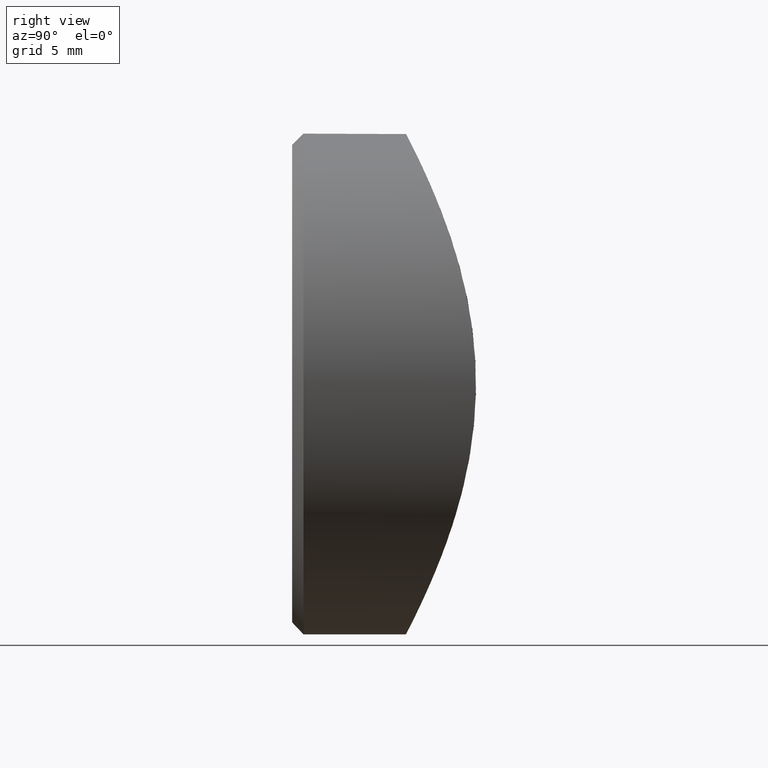
[diagram: clean part render]
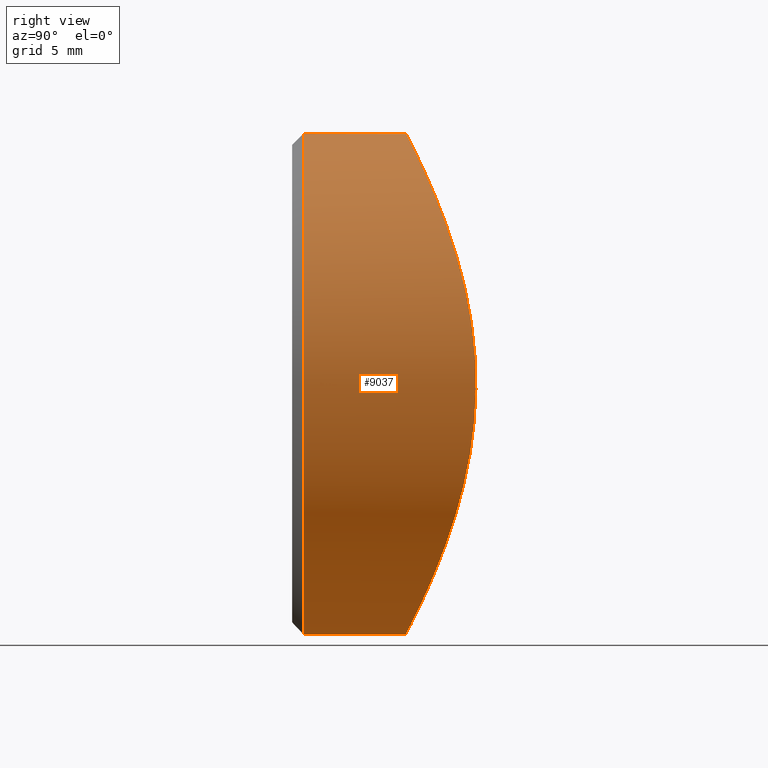
[diagram: same view with one face highlighted and labeled with its STEP entity id]
A machine part, right view. The second image highlights one B-rep face of the part: STEP entity #9037.
In plain terms, the highlighted cylindrical surface (bore or boss wall) has radius 11 mm, axis along (-0, -1, -0).
Its self-contained STEP definition (entity closure, byte-faithful):
#244 = CARTESIAN_POINT ( 'NONE',  ( 10.70620333068208119, 7.901795306539453279, -2.551291724373591752 ) ) ;
#329 = CARTESIAN_POINT ( 'NONE',  ( 3.927775296252041581, 5.364277933268157383, -10.28115287264342825 ) ) ;
#411 = CARTESIAN_POINT ( 'NONE',  ( 6.439472292355020500, 5.999280053823913050, -8.925292515866772192 ) ) ;
#451 = CARTESIAN_POINT ( 'NONE',  ( -10.84942384772801205, 7.986341322155988465, 1.850712909451587951 ) ) ;
#493 = CARTESIAN_POINT ( 'NONE',  ( -4.906659197807594630, 5.564238912340652377, 9.871899306962941267 ) ) ;
#527 = CARTESIAN_POINT ( 'NONE',  ( 8.046373666709609296, 6.584517496706517647, 7.508647219459643196 ) ) ;
#542 = CYLINDRICAL_SURFACE ( 'NONE', #10311, 11.00000000000000000 ) ;
#574 = CARTESIAN_POINT ( 'NONE',  ( 4.942988210309541941, 5.573332406475749679, 9.852844762403295320 ) ) ;
#613 = CARTESIAN_POINT ( 'NONE',  ( 0.7661881482282912881, 5.001238617810880527, 10.99761283690917146 ) ) ;
#693 = FACE_OUTER_BOUND ( 'NONE', #6405, .T. ) ;
#733 = CARTESIAN_POINT ( 'NONE',  ( -8.944118814454265376, 6.977865798376565287, -6.413131222837708201 ) ) ;
#1193 = CARTESIAN_POINT ( 'NONE',  ( 9.525308709443146782, 7.255308598689055977, -5.547356482762179297 ) ) ;
#1241 = EDGE_LOOP ( 'NONE', ( #7239 ) ) ;
#1268 = CARTESIAN_POINT ( 'NONE',  ( 4.923219424198027383, 5.568450330113947189, -9.863062565716964158 ) ) ;
#1354 = CARTESIAN_POINT ( 'NONE',  ( 8.267441144527145624, 6.676947024252424256, -7.264604639880495540 ) ) ;
#1403 = CARTESIAN_POINT ( 'NONE',  ( -10.90517051537184656, 8.019814301164606363, 1.486797017513220576 ) ) ;
#1447 = CARTESIAN_POINT ( 'NONE',  ( -10.91283529454353562, 8.024418805323666248, -1.430130143669122500 ) ) ;
#1491 = CARTESIAN_POINT ( 'NONE',  ( -9.316623533679065261, 7.155602735120614177, 5.858919985396516594 ) ) ;
#1531 = CARTESIAN_POINT ( 'NONE',  ( 7.301562166325803460, 6.289893972743327843, 8.257290047815160960 ) ) ;
#1653 = CARTESIAN_POINT ( 'NONE',  ( -10.43203426849924575, 7.741589596595918721, -3.563010612061605631 ) ) ;
#1681 = B_SPLINE_CURVE_WITH_KNOTS ( 'NONE', 3,
 ( #6158, #10848, #10930, #5108, #11801, #5190, #329, #1268, #11893, #411, #9932, #10808, #2263, #4182, #1354, #2342, #9070, #1193, #10020, #4268, #5230, #11935, #244, #7945, #3382, #11052, #4424, #3344, #10151, #2507, #8291, #11015, #9113, #4385, #10064, #5355, #6336, #8136, #527, #1531, #2424, #11136, #574, #11094, #3422, #3509, #9274, #6293, #613, #2384, #9237, #7311, #4305, #3466, #5439, #493, #7273, #8251, #6201, #2542, #10193, #1491, #7183, #7226, #4466, #5396, #6378, #451, #1403, #8175, #5272, #11978, #6246, #1447, #9156, #5314, #1653, #4593, #5523, #12135, #3667, #733, #6455, #11346, #11302, #8366, #3543, #4682, #12299, #7566, #7475, #7522, #10271, #9482, #3712, #10433, #8451, #1695 ),
 .UNSPECIFIED., .T., .F.,
 ( 4, 2, 2, 2, 2, 2, 2, 2, 2, 2, 2, 2, 2, 2, 2, 2, 2, 2, 2, 2, 2, 2, 2, 2, 2, 2, 2, 2, 2, 2, 2, 2, 2, 2, 2, 2, 2, 2, 2, 2, 2, 2, 2, 2, 2, 2, 2, 2, 4 ),
 ( 0.000000000000000000, 0.002188003082304654841, 0.003282004623456982045, 0.004376006164609308816, 0.006564009246913963223, 0.007658010788066288259, 0.008752012329218615896, 0.009846013870370942667, 0.01094001541152327117, 0.01312801849382792124, 0.01422202003498024628, 0.01531602157613257305, 0.01750402465843722832, 0.01859802619958955336, 0.01969202774074188186, 0.02078602928189421037, 0.02188003082304653887, 0.02406803390535119241, 0.02516203544650352092, 0.02625603698765584942, 0.02844404006996050296, 0.03063204315226515997, 0.03172604469341748501, 0.03282004623456981351, 0.03500804931687447052, 0.03610205085802679903, 0.03719605239917912753, 0.03938405548148377761, 0.04157205856378843462, 0.04376006164609309163, 0.04594806472839774864, 0.04704206626955007020, 0.04813606781070239871, 0.05032407089300706265, 0.05141807243415939116, 0.05251207397531171273, 0.05360607551646404123, 0.05470007705761636974, 0.05688808013992101981, 0.05798208168107334831, 0.05907608322222567682, 0.06017008476337800532, 0.06126408630453033383, 0.06345208938683499778, 0.06454609092798732628, 0.06564009246913965478, 0.06782809555144431179, 0.06892209709259664030, 0.07001609863374896880 ),
 .UNSPECIFIED. ) ;
#1695 = CARTESIAN_POINT ( 'NONE',  ( 1.626303258728256651E-16, 5.000000000000002665, -11.00000000000000178 ) ) ;
#1720 = CARTESIAN_POINT ( 'NONE',  ( 0.000000000000000000, 5.000000000000000888, -11.00000000000000000 ) ) ;
#2121 = VERTEX_POINT ( 'NONE', #2736 ) ;
#2263 = CARTESIAN_POINT ( 'NONE',  ( 7.533381166891571112, 6.381835589875548109, -8.023214781158337416 ) ) ;
#2342 = CARTESIAN_POINT ( 'NONE',  ( 8.716991664604597290, 6.873483581067159953, -6.718565320900548699 ) ) ;
#2384 = CARTESIAN_POINT ( 'NONE',  ( -0.3304821063437383133, 4.999424213438067532, 11.00110970196394433 ) ) ;
#2424 = CARTESIAN_POINT ( 'NONE',  ( 6.758495176017437878, 6.096552498446191848, 8.708483410855748730 ) ) ;
#2507 = CARTESIAN_POINT ( 'NONE',  ( 10.71514647470200643, 7.907037431630823399, 2.513462174968426499 ) ) ;
#2542 = CARTESIAN_POINT ( 'NONE',  ( -8.271575633887181311, 6.672854846020938702, 7.285564790806043689 ) ) ;
#2718 = DIRECTION ( 'NONE',  ( 0.000000000000000000, 0.000000000000000000, -1.000000000000000000 ) ) ;
#2721 = EDGE_CURVE ( 'NONE', #2121, #2121, #4227, .T. ) ;
#2736 = CARTESIAN_POINT ( 'NONE',  ( 0.000000000000000000, 0.4999999999999952260, 11.00000000000000000 ) ) ;
#3344 = CARTESIAN_POINT ( 'NONE',  ( 10.91148235597395910, 8.023605628825722036, 1.440419524102471094 ) ) ;
#3382 = CARTESIAN_POINT ( 'NONE',  ( 10.99800208367776477, 8.075873664732334589, -0.7619070900029055737 ) ) ;
#3422 = CARTESIAN_POINT ( 'NONE',  ( 3.617143603080511749, 5.307918549273324516, 10.39460299725860359 ) ) ;
#3466 = CARTESIAN_POINT ( 'NONE',  ( -2.869170902224891684, 5.182776678979848839, 10.64418697513752576 ) ) ;
#3509 = CARTESIAN_POINT ( 'NONE',  ( 2.924692728780287077, 5.199786486053920243, 10.61026256782288257 ) ) ;
#3543 = CARTESIAN_POINT ( 'NONE',  ( -6.749965422141849025, 6.093853175831468683, -8.714572992334876034 ) ) ;
#3667 = CARTESIAN_POINT ( 'NONE',  ( -9.338251989776047424, 7.166220700876566596, -5.824307960938729600 ) ) ;
#3712 = CARTESIAN_POINT ( 'NONE',  ( -1.475810461039820831, 5.048227752373741772, -10.90680908830020357 ) ) ;
#3720 = DIRECTION ( 'NONE',  ( -0.000000000000000000, -1.000000000000000000, -0.000000000000000000 ) ) ;
#3787 = DIRECTION ( 'NONE',  ( -0.000000000000000000, 1.000000000000000000, -0.000000000000000000 ) ) ;
#4182 = CARTESIAN_POINT ( 'NONE',  ( 8.030741142240314545, 6.578107402731796505, -7.525357395938277350 ) ) ;
#4227 = CIRCLE ( 'NONE', #4417, 11.00000000000000000 ) ;
#4268 = CARTESIAN_POINT ( 'NONE',  ( 10.27677230834422595, 7.656732314538135853, -3.938929137060056096 ) ) ;
#4305 = CARTESIAN_POINT ( 'NONE',  ( -1.797442739525138888, 5.073283405931716672, 10.85826478333871492 ) ) ;
#4385 = CARTESIAN_POINT ( 'NONE',  ( 9.875124846991392147, 7.437756601865980421, 4.899124854131734708 ) ) ;
#4417 = AXIS2_PLACEMENT_3D ( 'NONE', #7674, #3787, #6620 ) ;
#4424 = CARTESIAN_POINT ( 'NONE',  ( 10.98332523577125208, 8.066927278961861347, 0.7083942231674656975 ) ) ;
#4466 = CARTESIAN_POINT ( 'NONE',  ( -9.997199513765075096, 7.504522913268830919, 4.602503198581874955 ) ) ;
#4593 = CARTESIAN_POINT ( 'NONE',  ( -10.01511374817991396, 7.514107995310277843, -4.563780506468198439 ) ) ;
#4682 = CARTESIAN_POINT ( 'NONE',  ( -5.866171023575696530, 5.825436670913803461, -9.312061610184477090 ) ) ;
#4750 = FACE_OUTER_BOUND ( 'NONE', #1241, .T. ) ;
#5108 = CARTESIAN_POINT ( 'NONE',  ( 2.534682675223399517, 5.149026273689956135, -10.71015019809598101 ) ) ;
#5190 = CARTESIAN_POINT ( 'NONE',  ( 3.585325968123272755, 5.302388205038666591, -10.40571078054324161 ) ) ;
#5230 = CARTESIAN_POINT ( 'NONE',  ( 10.40012597654171067, 7.725890778498209599, -3.601324458944998863 ) ) ;
#5272 = CARTESIAN_POINT ( 'NONE',  ( -10.99889762403681459, 8.076417225544075151, 0.3964770693584104833 ) ) ;
#5314 = CARTESIAN_POINT ( 'NONE',  ( -10.64351090047416193, 7.864696781815916360, -2.872213773439324491 ) ) ;
#5355 = CARTESIAN_POINT ( 'NONE',  ( 8.945724061720213172, 6.978607076919857377, 6.410945904303895659 ) ) ;
#5396 = CARTESIAN_POINT ( 'NONE',  ( -10.41266210851994423, 7.730676398745607969, 3.617264582210855117 ) ) ;
#5439 = CARTESIAN_POINT ( 'NONE',  ( -3.563249721100179457, 5.290356493343431055, 10.43230328524458095 ) ) ;
#5523 = CARTESIAN_POINT ( 'NONE',  ( -9.859481239499171323, 7.431229301258803766, -4.890628027837803593 ) ) ;
#6158 = CARTESIAN_POINT ( 'NONE',  ( 1.626303258728256651E-16, 5.000000000000002665, -11.00000000000000178 ) ) ;
#6201 = CARTESIAN_POINT ( 'NONE',  ( -7.272363231969766417, 6.279129176816129920, 8.283184822907376343 ) ) ;
#6246 = CARTESIAN_POINT ( 'NONE',  ( -10.98398630777729501, 8.067328638044862998, -0.6980624500910832531 ) ) ;
#6293 = CARTESIAN_POINT ( 'NONE',  ( 1.490624953899859717, 5.040158390333101757, 10.92313522355307853 ) ) ;
#6336 = CARTESIAN_POINT ( 'NONE',  ( 8.732449053060632238, 6.880461853132674221, 6.698512477491932238 ) ) ;
#6378 = CARTESIAN_POINT ( 'NONE',  ( -10.62777386024006887, 7.855522252781230286, 2.931035171921014371 ) ) ;
#6405 = EDGE_LOOP ( 'NONE', ( #9009 ) ) ;
#6455 = CARTESIAN_POINT ( 'NONE',  ( -8.733124148556850486, 6.880760165170922704, -6.697674060011289399 ) ) ;
#6620 = DIRECTION ( 'NONE',  ( 0.000000000000000000, 0.000000000000000000, 1.000000000000000000 ) ) ;
#7183 = CARTESIAN_POINT ( 'NONE',  ( -9.503311465944445757, 7.248389956309825521, 5.551071626061271580 ) ) ;
#7226 = CARTESIAN_POINT ( 'NONE',  ( -9.843093480281877916, 7.422620981476626412, 4.923498324854598707 ) ) ;
#7239 = ORIENTED_EDGE ( 'NONE', *, *, #2721, .T. ) ;
#7273 = CARTESIAN_POINT ( 'NONE',  ( -5.535620454030974358, 5.726176660261271145, 9.532181099180055739 ) ) ;
#7311 = CARTESIAN_POINT ( 'NONE',  ( -1.434858456084544764, 5.045399829630942357, 10.91228900024890969 ) ) ;
#7475 = CARTESIAN_POINT ( 'NONE',  ( -4.600097666025678933, 5.502339205330521565, -9.998397122419751426 ) ) ;
#7522 = CARTESIAN_POINT ( 'NONE',  ( -3.607667810288317956, 5.298302064107291542, -10.41633847323307549 ) ) ;
#7566 = CARTESIAN_POINT ( 'NONE',  ( -4.924175399756159699, 5.577202704896468077, -9.842905872910705511 ) ) ;
#7674 = CARTESIAN_POINT ( 'NONE',  ( 0.000000000000000000, 0.4999999999999952260, 0.000000000000000000 ) ) ;
#7680 = VERTEX_POINT ( 'NONE', #1720 ) ;
#7775 = EDGE_CURVE ( 'NONE', #7680, #7680, #1681, .T. ) ;
#7945 = CARTESIAN_POINT ( 'NONE',  ( 10.92364341223902002, 8.030180142637464158, -1.483755871195856724 ) ) ;
#8136 = CARTESIAN_POINT ( 'NONE',  ( 8.282905433917242988, 6.683501895951066807, 7.247014105698896813 ) ) ;
#8175 = CARTESIAN_POINT ( 'NONE',  ( -10.97975971317067412, 8.064764334188854633, 0.7603854165196879400 ) ) ;
#8251 = CARTESIAN_POINT ( 'NONE',  ( -6.716737983236949816, 6.082694841941218122, 8.740194573531734790 ) ) ;
#8291 = CARTESIAN_POINT ( 'NONE',  ( 10.62660936043144133, 7.855245537905013897, 2.864689321924585474 ) ) ;
#8366 = CARTESIAN_POINT ( 'NONE',  ( -7.293162379780823379, 6.286726357215658645, -8.265048674629083436 ) ) ;
#8451 = CARTESIAN_POINT ( 'NONE',  ( -0.3703468504909177561, 5.000000000000003553, -11.00000000000000355 ) ) ;
#9009 = ORIENTED_EDGE ( 'NONE', *, *, #7775, .T. ) ;
#9037 = ADVANCED_FACE ( 'NONE', ( #4750, #693 ), #542, .T. ) ;
#9070 = CARTESIAN_POINT ( 'NONE',  ( 8.930807154490498334, 6.971664316832415942, -6.431706698735612626 ) ) ;
#9113 = CARTESIAN_POINT ( 'NONE',  ( 10.29126172107529946, 7.664766006145137922, 3.901257612403952191 ) ) ;
#9156 = CARTESIAN_POINT ( 'NONE',  ( -10.85830687869648692, 7.991647827827236483, -1.797402512033477340 ) ) ;
#9237 = CARTESIAN_POINT ( 'NONE',  ( -0.6984263354874409302, 5.008300497339214452, 10.98403708423493619 ) ) ;
#9274 = CARTESIAN_POINT ( 'NONE',  ( 2.567294448863505441, 5.152928609004067795, 10.70248619149486835 ) ) ;
#9482 = CARTESIAN_POINT ( 'NONE',  ( -1.843148062856518443, 5.077194980460737028, -10.85066172779794869 ) ) ;
#9932 = CARTESIAN_POINT ( 'NONE',  ( 6.726511180750548213, 6.093340416670678827, -8.710877387972685071 ) ) ;
#10020 = CARTESIAN_POINT ( 'NONE',  ( 9.861644229273718310, 7.430682611660816228, -4.925121358155288398 ) ) ;
#10064 = CARTESIAN_POINT ( 'NONE',  ( 9.538256735574176304, 7.261854419881140998, 5.525077732636639816 ) ) ;
#10151 = CARTESIAN_POINT ( 'NONE',  ( 10.85758155682542991, 7.991217332315730282, 1.801326959827177943 ) ) ;
#10193 = CARTESIAN_POINT ( 'NONE',  ( -8.719913155160499585, 6.871335287458406604, 6.743054531945021246 ) ) ;
#10271 = CARTESIAN_POINT ( 'NONE',  ( -2.919322082857843892, 5.189576270886922416, -10.63079382865562650 ) ) ;
#10311 = AXIS2_PLACEMENT_3D ( 'NONE', #10363, #3720, #2718 ) ;
#10363 = CARTESIAN_POINT ( 'NONE',  ( 0.000000000000000000, 12.00000000000000000, 0.000000000000000000 ) ) ;
#10433 = CARTESIAN_POINT ( 'NONE',  ( -0.7406492708284738713, 5.009744588844895041, -10.98125401141253299 ) ) ;
#10808 = CARTESIAN_POINT ( 'NONE',  ( 7.272722023686278625, 6.284397407287936943, -8.260317905458878229 ) ) ;
#10848 = CARTESIAN_POINT ( 'NONE',  ( 0.7406937009818306272, 5.000000000000000888, -11.00000000000000000 ) ) ;
#10930 = CARTESIAN_POINT ( 'NONE',  ( 1.466589509284834225, 5.038677745217595927, -10.92597132206872068 ) ) ;
#11015 = CARTESIAN_POINT ( 'NONE',  ( 10.41506932932829876, 7.734324446718769508, 3.557752419104349251 ) ) ;
#11052 = CARTESIAN_POINT ( 'NONE',  ( 11.00093997453022254, 8.077656857097265330, 0.3368348829577760273 ) ) ;
#11094 = CARTESIAN_POINT ( 'NONE',  ( 3.954731134231094458, 5.369415784208213971, 10.27073620758329930 ) ) ;
#11136 = CARTESIAN_POINT ( 'NONE',  ( 5.569820284397110299, 5.735324080467353092, 9.512730541801296624 ) ) ;
#11302 = CARTESIAN_POINT ( 'NONE',  ( -8.042678600626141261, 6.582979530657690148, -7.512698097221123916 ) ) ;
#11346 = CARTESIAN_POINT ( 'NONE',  ( -8.282596168350016441, 6.683363868181916523, -7.247406151188751089 ) ) ;
#11801 = CARTESIAN_POINT ( 'NONE',  ( 2.887231030859476633, 5.194556943376598568, -10.62060620305898517 ) ) ;
#11893 = CARTESIAN_POINT ( 'NONE',  ( 5.550346600703138122, 5.730090092932976553, -9.523878002328917347 ) ) ;
#11935 = CARTESIAN_POINT ( 'NONE',  ( 10.61521084714543584, 7.848634096434105700, -2.906794945843087508 ) ) ;
#11978 = CARTESIAN_POINT ( 'NONE',  ( -11.00101006813254934, 8.077699400808828756, -0.3327468879133291813 ) ) ;
#12135 = CARTESIAN_POINT ( 'NONE',  ( -9.521391004410391545, 7.257475427095384291, -5.520029543384864290 ) ) ;
#12299 = CARTESIAN_POINT ( 'NONE',  ( -5.558885652228839014, 5.739157838741399509, -9.498899393929182366 ) ) ;